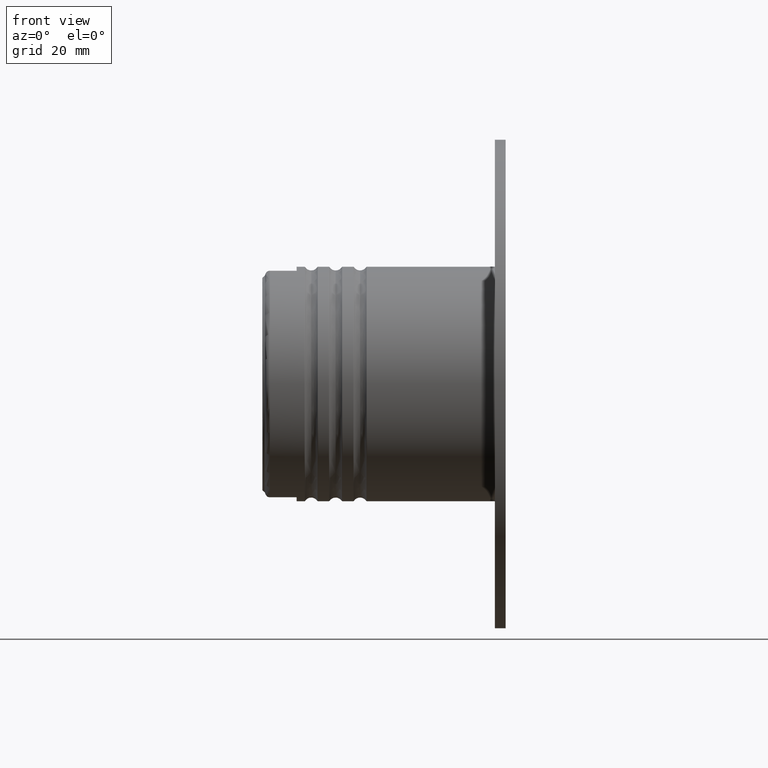
[diagram: clean part render]
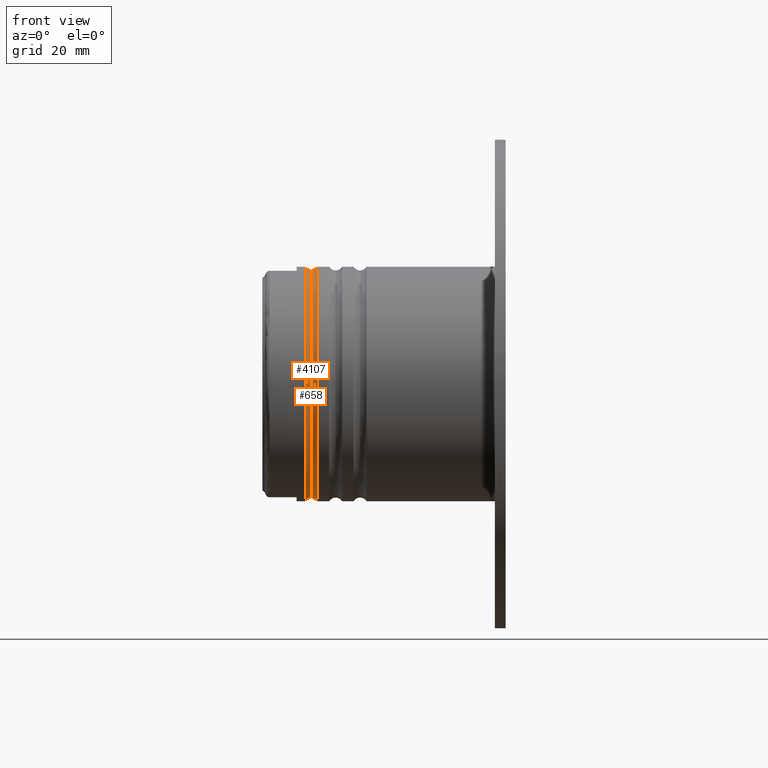
[diagram: same view with one multi-face feature highlighted, each face labeled with its STEP entity id]
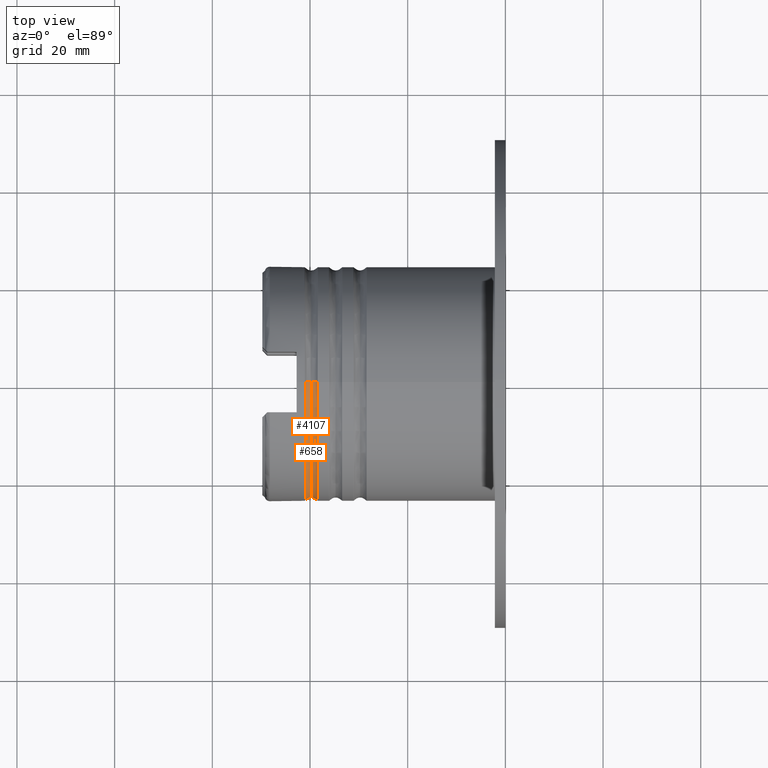
[diagram: same view with one multi-face feature highlighted, each face labeled with its STEP entity id]
A machine part, front view. The highlighted faces form ONE feature: a constant-radius fillet chain: 2 tangent blend faces with common blend radius 1.5 mm. The faces share edges in the B-rep.
A second angle (top view) of the same feature is appended — it is thin or edge-on in the first view.
Their STEP definitions:
[1] entity #658 (Torus):
#142 = AXIS2_PLACEMENT_3D ( 'NONE', #4989, #3681, #1500 ) ;
#165 = CARTESIAN_POINT ( 'NONE',  ( -39.74972662999999784, 0.0000000000000000000, 23.24999999999999645 ) ) ;
#576 = CARTESIAN_POINT ( 'NONE',  ( -38.50579673177602302, 2.928346610902347386E-15, -23.91176470588234793 ) ) ;
#604 = AXIS2_PLACEMENT_3D ( 'NONE', #3646, #4492, #4941 ) ;
#658 = ADVANCED_FACE ( 'NONE', ( #5448 ), #2396, .F. ) ;
#912 = DIRECTION ( 'NONE',  ( -1.000000000000000000, -0.0000000000000000000, -0.0000000000000000000 ) ) ;
#928 = EDGE_CURVE ( 'NONE', #3930, #3146, #5292, .T. ) ;
#1104 = EDGE_CURVE ( 'NONE', #4113, #3146, #3478, .T. ) ;
#1160 = AXIS2_PLACEMENT_3D ( 'NONE', #4202, #5610, #4640 ) ;
#1316 = ORIENTED_EDGE ( 'NONE', *, *, #928, .T. ) ;
#1500 = DIRECTION ( 'NONE',  ( 0.0000000000000000000, 0.0000000000000000000, 1.000000000000000000 ) ) ;
#1604 = ORIENTED_EDGE ( 'NONE', *, *, #4646, .F. ) ;
#1740 = DIRECTION ( 'NONE',  ( 0.0000000000000000000, 0.0000000000000000000, 1.000000000000000000 ) ) ;
#2396 = TOROIDAL_SURFACE ( 'NONE', #1160, 24.74999999999999289, 1.499999999999998668 ) ;
#3094 = CARTESIAN_POINT ( 'NONE',  ( -39.74972662999999784, 2.847303808017596139E-15, -23.24999999999999645 ) ) ;
#3146 = VERTEX_POINT ( 'NONE', #5308 ) ;
#3277 = DIRECTION ( 'NONE',  ( 0.0000000000000000000, -1.224646799147354933E-16, 1.000000000000000000 ) ) ;
#3377 = ORIENTED_EDGE ( 'NONE', *, *, #1104, .F. ) ;
#3475 = AXIS2_PLACEMENT_3D ( 'NONE', #3541, #912, #1740 ) ;
#3478 = CIRCLE ( 'NONE', #604, 1.499999999999997780 ) ;
#3541 = CARTESIAN_POINT ( 'NONE',  ( -38.50579673177602302, 0.0000000000000000000, 0.0000000000000000000 ) ) ;
#3646 = CARTESIAN_POINT ( 'NONE',  ( -39.74972662999999784, 0.0000000000000000000, 24.74999999999999289 ) ) ;
#3681 = DIRECTION ( 'NONE',  ( -1.000000000000000000, -0.0000000000000000000, -0.0000000000000000000 ) ) ;
#3685 = ORIENTED_EDGE ( 'NONE', *, *, #5083, .T. ) ;
#3752 = DIRECTION ( 'NONE',  ( -0.0000000000000000000, 1.000000000000000000, 1.224646799147353207E-16 ) ) ;
#3772 = CARTESIAN_POINT ( 'NONE',  ( -39.74972662999999784, 3.031000827889698467E-15, -24.74999999999999289 ) ) ;
#3801 = CIRCLE ( 'NONE', #142, 23.24999999999999645 ) ;
#3930 = VERTEX_POINT ( 'NONE', #576 ) ;
#4113 = VERTEX_POINT ( 'NONE', #165 ) ;
#4202 = CARTESIAN_POINT ( 'NONE',  ( -39.74972662999999784, 0.0000000000000000000, 0.0000000000000000000 ) ) ;
#4492 = DIRECTION ( 'NONE',  ( 0.0000000000000000000, -1.000000000000000000, 0.0000000000000000000 ) ) ;
#4598 = CIRCLE ( 'NONE', #4815, 1.499999999999997780 ) ;
#4640 = DIRECTION ( 'NONE',  ( 0.0000000000000000000, 0.0000000000000000000, 1.000000000000000000 ) ) ;
#4646 = EDGE_CURVE ( 'NONE', #4961, #4113, #3801, .T. ) ;
#4815 = AXIS2_PLACEMENT_3D ( 'NONE', #3772, #3752, #3277 ) ;
#4941 = DIRECTION ( 'NONE',  ( 0.0000000000000000000, 0.0000000000000000000, -1.000000000000000000 ) ) ;
#4961 = VERTEX_POINT ( 'NONE', #3094 ) ;
#4989 = CARTESIAN_POINT ( 'NONE',  ( -39.74972662999999784, 0.0000000000000000000, 0.0000000000000000000 ) ) ;
#5070 = EDGE_LOOP ( 'NONE', ( #1604, #3685, #1316, #3377 ) ) ;
#5083 = EDGE_CURVE ( 'NONE', #4961, #3930, #4598, .T. ) ;
#5292 = CIRCLE ( 'NONE', #3475, 23.91176470588235148 ) ;
#5308 = CARTESIAN_POINT ( 'NONE',  ( -38.50579673177602302, 0.0000000000000000000, 23.91176470588234793 ) ) ;
#5448 = FACE_OUTER_BOUND ( 'NONE', #5070, .T. ) ;
#5610 = DIRECTION ( 'NONE',  ( -1.000000000000000000, -0.0000000000000000000, -0.0000000000000000000 ) ) ;
[2] entity #4107 (Torus):
#46 = ORIENTED_EDGE ( 'NONE', *, *, #4480, .T. ) ;
#142 = AXIS2_PLACEMENT_3D ( 'NONE', #4989, #3681, #1500 ) ;
#165 = CARTESIAN_POINT ( 'NONE',  ( -39.74972662999999784, 0.0000000000000000000, 23.24999999999999645 ) ) ;
#177 = CIRCLE ( 'NONE', #5532, 1.499999999999997780 ) ;
#804 = CARTESIAN_POINT ( 'NONE',  ( -40.99365652822395845, 0.0000000000000000000, 0.0000000000000000000 ) ) ;
#958 = EDGE_LOOP ( 'NONE', ( #46, #2194, #5457, #2017 ) ) ;
#1168 = AXIS2_PLACEMENT_3D ( 'NONE', #804, #3906, #1263 ) ;
#1263 = DIRECTION ( 'NONE',  ( 0.0000000000000000000, 0.0000000000000000000, 1.000000000000000000 ) ) ;
#1303 = CARTESIAN_POINT ( 'NONE',  ( -40.99365652822395845, 2.933749464427997049E-15, -23.91176470588234793 ) ) ;
#1431 = CIRCLE ( 'NONE', #1168, 23.91176470588234793 ) ;
#1496 = CARTESIAN_POINT ( 'NONE',  ( -39.74972662999999784, 0.0000000000000000000, 24.74999999999999289 ) ) ;
#1500 = DIRECTION ( 'NONE',  ( 0.0000000000000000000, 0.0000000000000000000, 1.000000000000000000 ) ) ;
#2017 = ORIENTED_EDGE ( 'NONE', *, *, #2114, .F. ) ;
#2114 = EDGE_CURVE ( 'NONE', #3754, #2402, #1431, .T. ) ;
#2189 = DIRECTION ( 'NONE',  ( -0.0000000000000000000, 1.000000000000000000, 1.224646799147353207E-16 ) ) ;
#2194 = ORIENTED_EDGE ( 'NONE', *, *, #4646, .T. ) ;
#2376 = AXIS2_PLACEMENT_3D ( 'NONE', #5506, #5525, #4592 ) ;
#2392 = CARTESIAN_POINT ( 'NONE',  ( -40.99365652822395845, 0.0000000000000000000, 23.91176470588234793 ) ) ;
#2402 = VERTEX_POINT ( 'NONE', #2392 ) ;
#3094 = CARTESIAN_POINT ( 'NONE',  ( -39.74972662999999784, 2.847303808017596139E-15, -23.24999999999999645 ) ) ;
#3191 = EDGE_CURVE ( 'NONE', #2402, #4113, #5694, .T. ) ;
#3443 = DIRECTION ( 'NONE',  ( 0.0000000000000000000, -1.224646799147354933E-16, 1.000000000000000000 ) ) ;
#3681 = DIRECTION ( 'NONE',  ( -1.000000000000000000, -0.0000000000000000000, -0.0000000000000000000 ) ) ;
#3754 = VERTEX_POINT ( 'NONE', #1303 ) ;
#3801 = CIRCLE ( 'NONE', #142, 23.24999999999999645 ) ;
#3906 = DIRECTION ( 'NONE',  ( -1.000000000000000000, -0.0000000000000000000, -0.0000000000000000000 ) ) ;
#4102 = DIRECTION ( 'NONE',  ( 0.0000000000000000000, -1.000000000000000000, 0.0000000000000000000 ) ) ;
#4107 = ADVANCED_FACE ( 'NONE', ( #5541 ), #4705, .F. ) ;
#4113 = VERTEX_POINT ( 'NONE', #165 ) ;
#4480 = EDGE_CURVE ( 'NONE', #3754, #4961, #177, .T. ) ;
#4592 = DIRECTION ( 'NONE',  ( 0.0000000000000000000, 0.0000000000000000000, 1.000000000000000000 ) ) ;
#4646 = EDGE_CURVE ( 'NONE', #4961, #4113, #3801, .T. ) ;
#4705 = TOROIDAL_SURFACE ( 'NONE', #2376, 24.74999999999999289, 1.499999999999998668 ) ;
#4961 = VERTEX_POINT ( 'NONE', #3094 ) ;
#4989 = CARTESIAN_POINT ( 'NONE',  ( -39.74972662999999784, 0.0000000000000000000, 0.0000000000000000000 ) ) ;
#5386 = DIRECTION ( 'NONE',  ( 0.0000000000000000000, 0.0000000000000000000, -1.000000000000000000 ) ) ;
#5457 = ORIENTED_EDGE ( 'NONE', *, *, #3191, .F. ) ;
#5506 = CARTESIAN_POINT ( 'NONE',  ( -39.74972662999999784, 0.0000000000000000000, 0.0000000000000000000 ) ) ;
#5525 = DIRECTION ( 'NONE',  ( -1.000000000000000000, -0.0000000000000000000, -0.0000000000000000000 ) ) ;
#5532 = AXIS2_PLACEMENT_3D ( 'NONE', #5707, #2189, #3443 ) ;
#5541 = FACE_OUTER_BOUND ( 'NONE', #958, .T. ) ;
#5677 = AXIS2_PLACEMENT_3D ( 'NONE', #1496, #4102, #5386 ) ;
#5694 = CIRCLE ( 'NONE', #5677, 1.499999999999997780 ) ;
#5707 = CARTESIAN_POINT ( 'NONE',  ( -39.74972662999999784, 3.031000827889698467E-15, -24.74999999999999289 ) ) ;